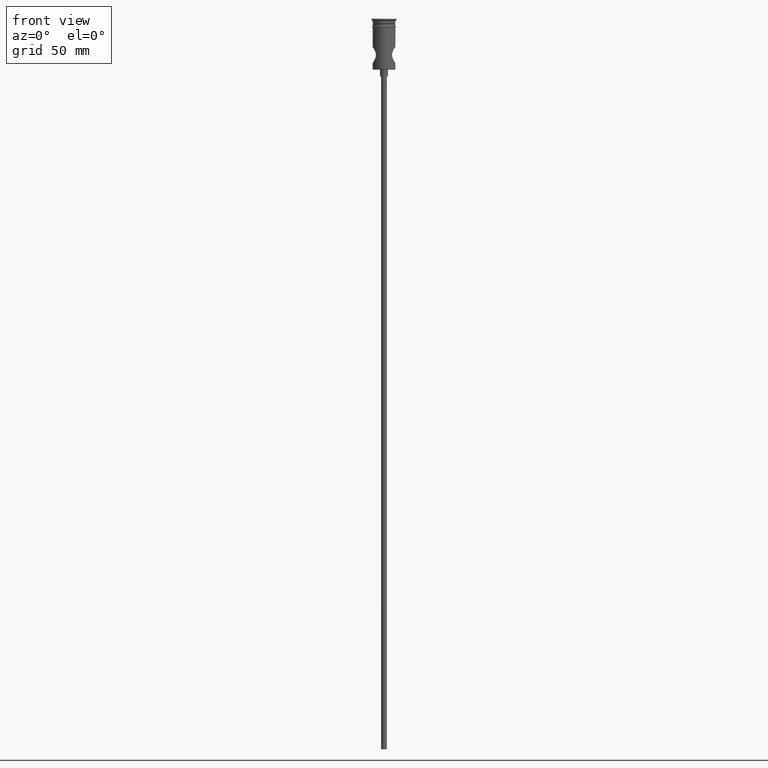
[diagram: clean part render]
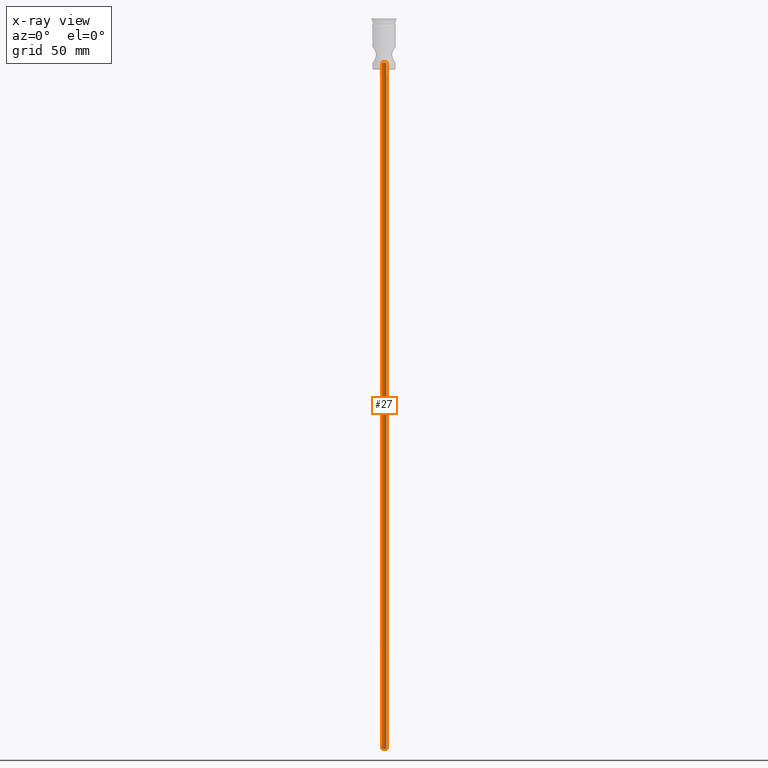
[diagram: x-ray — body ghosted, one internal face saturated and labeled with its STEP entity id]
A machine part, front view, then the same camera in x-ray: the body is ghosted and one INTERNAL B-rep face — a face not visible from any outside direction — is saturated and labeled: STEP entity #27.
In plain terms, the highlighted cylindrical surface (edge-blend (fillet) strip) has radius 1 mm, axis along (-0, -0, -1).
Its self-contained STEP definition (entity closure, byte-faithful):
#6 = CARTESIAN_POINT ( 'NONE',  ( 0.6150344307886690398, 0.7992185073637478876, -19.40883033734092322 ) ) ;
#7 = EDGE_CURVE ( 'NONE', #444, #524, #527, .T. ) ;
#21 = ORIENTED_EDGE ( 'NONE', *, *, #806, .T. ) ;
#27 = ADVANCED_FACE ( 'NONE', ( #1381 ), #254, .F. ) ;
#97 = LINE ( 'NONE', #756, #286 ) ;
#115 = CARTESIAN_POINT ( 'NONE',  ( 0.8734106350840727950, 0.5041672621904196294, -19.46561914214669287 ) ) ;
#129 = CARTESIAN_POINT ( 'NONE',  ( 1.000000000000000000, 4.681958892246364514E-21, -19.50000000000000000 ) ) ;
#196 = CARTESIAN_POINT ( 'NONE',  ( -1.000000000000000000, 0.000000000000000000, -322.5000000000000000 ) ) ;
#251 = CARTESIAN_POINT ( 'NONE',  ( -1.000000000000000000, 0.000000000000000000, -19.50000000000000000 ) ) ;
#254 = CYLINDRICAL_SURFACE ( 'NONE', #283, 1.000000000000000000 ) ;
#283 = AXIS2_PLACEMENT_3D ( 'NONE', #1346, #1148, #371 ) ;
#286 = VECTOR ( 'NONE', #661, 1000.000000000000000 ) ;
#299 = CARTESIAN_POINT ( 'NONE',  ( -0.9732933389586853057, 0.2640922853737913134, -19.49212774291619965 ) ) ;
#302 = ORIENTED_EDGE ( 'NONE', *, *, #907, .F. ) ;
#326 = CARTESIAN_POINT ( 'NONE',  ( -1.000000000000000000, 0.000000000000000000, -19.50000000000000000 ) ) ;
#371 = DIRECTION ( 'NONE',  ( -1.000000000000000000, 0.000000000000000000, 0.000000000000000000 ) ) ;
#426 = CARTESIAN_POINT ( 'NONE',  ( 0.7994811891185863439, 0.6146929329460447677, -19.44688657914280228 ) ) ;
#444 = VERTEX_POINT ( 'NONE', #196 ) ;
#451 = DIRECTION ( 'NONE',  ( -1.000000000000000000, 0.000000000000000000, 0.000000000000000000 ) ) ;
#472 = CARTESIAN_POINT ( 'NONE',  ( 0.000000000000000000, 0.000000000000000000, -322.5000000000000000 ) ) ;
#479 = DIRECTION ( 'NONE',  ( 0.000000000000000000, 0.000000000000000000, -1.000000000000000000 ) ) ;
#504 = B_SPLINE_CURVE_WITH_KNOTS ( 'NONE', 3,
 ( #1198, #872, #1108, #115, #426, #6, #538, #1298, #1100, #1191, #652, #739, #1327, #516, #983, #299, #865, #326 ),
 .UNSPECIFIED., .F., .F.,
 ( 4, 2, 2, 2, 2, 2, 2, 2, 4 ),
 ( 0.003142913064405511523, 0.003535670621078468041, 0.003928428177751424125, 0.004321185734424380642, 0.004713943291097337160, 0.005106700847770293678, 0.005499458404443250195, 0.005892215961116205845, 0.006284973517789162363 ),
 .UNSPECIFIED. ) ;
#516 = CARTESIAN_POINT ( 'NONE',  ( -0.7985123707879597799, 0.6157855475276747814, -19.44667449721106323 ) ) ;
#524 = VERTEX_POINT ( 'NONE', #1237 ) ;
#527 = CIRCLE ( 'NONE', #651, 1.000000000000000000 ) ;
#538 = CARTESIAN_POINT ( 'NONE',  ( 0.5059809035076541228, 0.8725956800019867288, -19.38988811594309425 ) ) ;
#651 = AXIS2_PLACEMENT_3D ( 'NONE', #472, #479, #451 ) ;
#652 = CARTESIAN_POINT ( 'NONE',  ( -0.2631726871121145006, 0.9735322132565759068, -19.36228026829819271 ) ) ;
#661 = DIRECTION ( 'NONE',  ( -0.000000000000000000, -0.000000000000000000, -1.000000000000000000 ) ) ;
#698 = ORIENTED_EDGE ( 'NONE', *, *, #760, .T. ) ;
#739 = CARTESIAN_POINT ( 'NONE',  ( -0.5041604651539031146, 0.8734111625493790054, -19.38966761113383086 ) ) ;
#756 = CARTESIAN_POINT ( 'NONE',  ( -1.000000000000000000, 0.000000000000000000, 0.0009999999999732445133 ) ) ;
#760 = EDGE_CURVE ( 'NONE', #1397, #954, #504, .T. ) ;
#806 = EDGE_CURVE ( 'NONE', #954, #444, #97, .T. ) ;
#865 = CARTESIAN_POINT ( 'NONE',  ( -1.000000000000000222, 0.1328548843624557663, -19.50000000000000355 ) ) ;
#869 = ORIENTED_EDGE ( 'NONE', *, *, #7, .T. ) ;
#872 = CARTESIAN_POINT ( 'NONE',  ( 1.000000000000000000, 0.1309286667429949147, -19.49999999999999645 ) ) ;
#907 = EDGE_CURVE ( 'NONE', #1397, #524, #1018, .T. ) ;
#954 = VERTEX_POINT ( 'NONE', #251 ) ;
#983 = CARTESIAN_POINT ( 'NONE',  ( -0.8728688940508974037, 0.5051183550947857537, -19.46548068172155510 ) ) ;
#1018 = LINE ( 'NONE', #1121, #1389 ) ;
#1100 = CARTESIAN_POINT ( 'NONE',  ( 0.1319932390273248490, 0.9999802383981537535, -19.35410785802095646 ) ) ;
#1108 = CARTESIAN_POINT ( 'NONE',  ( 0.9735452106493993618, 0.2631358747190585823, -19.49219990523366519 ) ) ;
#1121 = CARTESIAN_POINT ( 'NONE',  ( 1.000000000000000000, 1.224646799147353207E-16, 0.0009999999999732445133 ) ) ;
#1148 = DIRECTION ( 'NONE',  ( -0.000000000000000000, -0.000000000000000000, -1.000000000000000000 ) ) ;
#1191 = CARTESIAN_POINT ( 'NONE',  ( -0.1316936354710128432, 1.000019739161273513, -19.35409608116890112 ) ) ;
#1198 = CARTESIAN_POINT ( 'NONE',  ( 1.000000000000000000, 4.681958892246364514E-21, -19.50000000000000000 ) ) ;
#1236 = DIRECTION ( 'NONE',  ( -0.000000000000000000, -0.000000000000000000, -1.000000000000000000 ) ) ;
#1237 = CARTESIAN_POINT ( 'NONE',  ( 1.000000000000000000, 1.224646799147353207E-16, -322.5000000000000000 ) ) ;
#1298 = CARTESIAN_POINT ( 'NONE',  ( 0.2621150761560532283, 0.9740305859285212087, -19.36214649845096858 ) ) ;
#1327 = CARTESIAN_POINT ( 'NONE',  ( -0.6150493311797187168, 0.7990795749240167112, -19.40884566432808001 ) ) ;
#1346 = CARTESIAN_POINT ( 'NONE',  ( 0.000000000000000000, 0.000000000000000000, 0.0009999999999732445133 ) ) ;
#1357 = EDGE_LOOP ( 'NONE', ( #302, #698, #21, #869 ) ) ;
#1381 = FACE_OUTER_BOUND ( 'NONE', #1357, .T. ) ;
#1389 = VECTOR ( 'NONE', #1236, 1000.000000000000000 ) ;
#1397 = VERTEX_POINT ( 'NONE', #129 ) ;